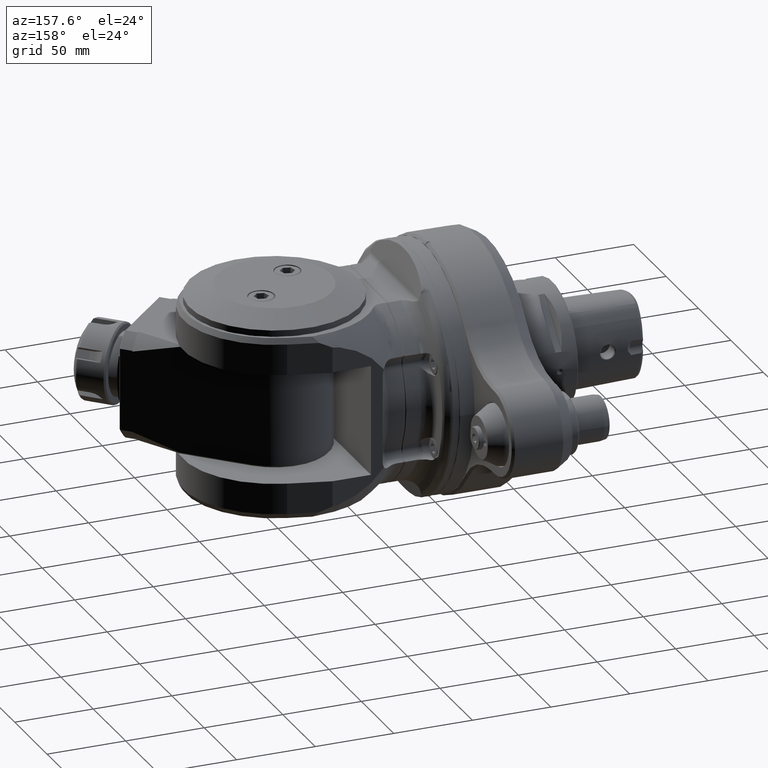
[diagram: clean part render]
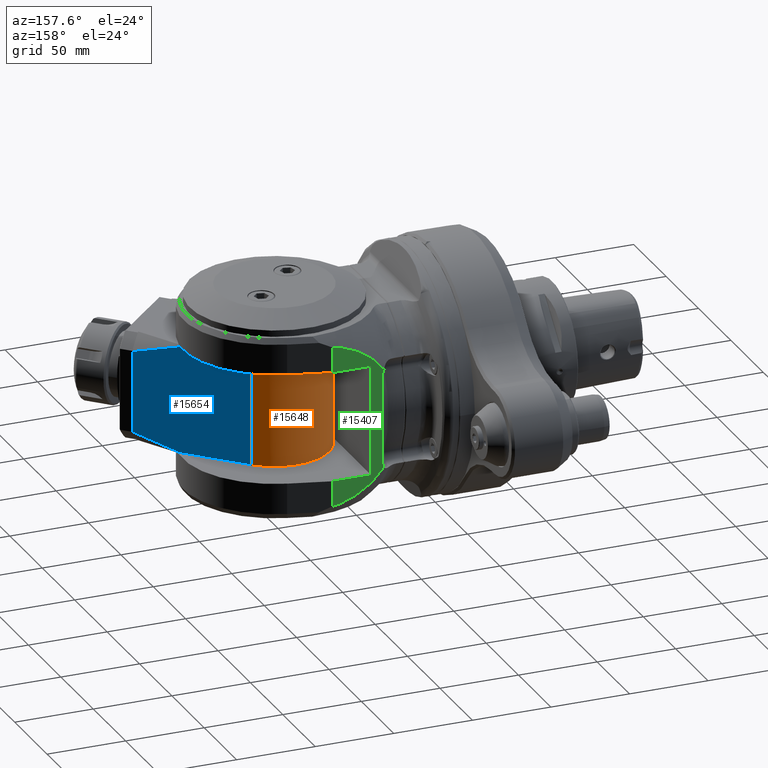
[diagram: same view with three faces highlighted in distinct colors, each labeled with its STEP entity id]
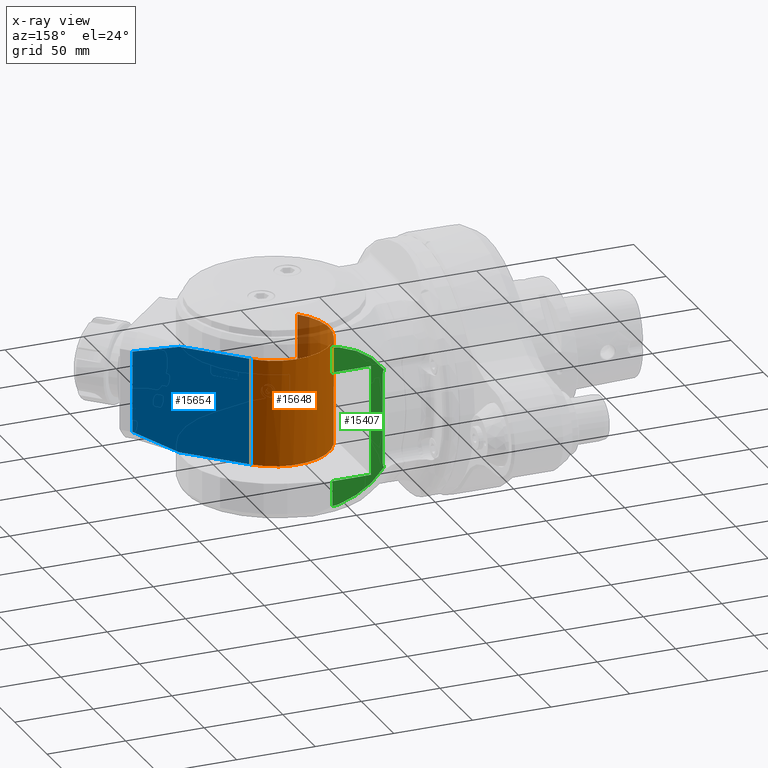
[diagram: x-ray of the same camera — body ghosted, the three highlighted faces saturated]
A machine part, auxiliary view with three faces highlighted in distinct colors.
The next image is the same camera in x-ray (body ghosted, the three faces saturated) — at least one of them is partly hidden behind the body in this view.
Their STEP definitions:

[orange] entity #15648 — the highlighted cylindrical surface (partial cylindrical patch) has radius 35 mm, axis along (-0, 0, -1).
#921=B_SPLINE_CURVE_WITH_KNOTS('',3,(#44510,#44511,#44512,#44513,#44514,
#44515,#44516,#44517,#44518,#44519,#44520,#44521,#44522,#44523,#44524,#44525,
#44526,#44527,#44528,#44529,#44530,#44531,#44532,#44533,#44534,#44535,#44536,
#44537,#44538,#44539,#44540,#44541,#44542,#44543),.UNSPECIFIED.,.F.,.F.,
(4,2,2,2,2,2,2,2,2,2,2,2,2,2,2,2,4),(5.2736137655339,5.93281548622564,6.59201720691737,
7.25121892760911,7.91042064830085,8.56962236899258,9.22882408968432,9.88802581037606,
10.5472275310678,11.2064292517595,11.8656309724513,12.524832693143,13.1840344138347,
13.8432361345265,14.5024378552182,15.16163957591,15.8208412966017),
 .UNSPECIFIED.);
#922=B_SPLINE_CURVE_WITH_KNOTS('',3,(#44545,#44546,#44547,#44548,#44549,
#44550,#44551,#44552,#44553,#44554,#44555,#44556,#44557,#44558,#44559,#44560,
#44561,#44562,#44563,#44564,#44565,#44566,#44567,#44568,#44569,#44570,#44571,
#44572,#44573,#44574,#44575,#44576,#44577,#44578),.UNSPECIFIED.,.F.,.F.,
(4,2,2,2,2,2,2,2,2,2,2,2,2,2,2,2,4),(-10.5472275316257,-9.88802581093393,
-9.22882409024218,-8.56962236955042,-7.91042064885867,-7.25121892816693,
-6.5920172074752,-5.93281548678346,-5.27361376609172,-4.61441204539998,
-3.95521032470824,-3.2960086040165,-2.63680688332476,-1.97760516263301,
-1.31840344194125,-0.659201721249496,-5.57740520434891E-10),
 .UNSPECIFIED.);
#2045=FACE_OUTER_BOUND('',#3044,.T.);
#3044=EDGE_LOOP('',(#13499,#13500,#13501,#13502));
#4096=LINE('',#44482,#5139);
#4103=LINE('',#44579,#5146);
#5139=VECTOR('',#20911,67.99999996999);
#5146=VECTOR('',#20930,67.99999996999);
#7323=VERTEX_POINT('',#44469);
#7326=VERTEX_POINT('',#44481);
#7338=VERTEX_POINT('',#44509);
#7339=VERTEX_POINT('',#44544);
#9451=EDGE_CURVE('',#7326,#7323,#4096,.T.);
#9464=EDGE_CURVE('',#7326,#7338,#921,.F.);
#9465=EDGE_CURVE('',#7339,#7323,#922,.F.);
#9466=EDGE_CURVE('',#7339,#7338,#4103,.T.);
#13499=ORIENTED_EDGE('',*,*,#9464,.F.);
#13500=ORIENTED_EDGE('',*,*,#9451,.T.);
#13501=ORIENTED_EDGE('',*,*,#9465,.F.);
#13502=ORIENTED_EDGE('',*,*,#9466,.T.);
#14941=CYLINDRICAL_SURFACE('',#17226,35.);
#15648=ADVANCED_FACE('',(#2045),#14941,.T.);
#17226=AXIS2_PLACEMENT_3D('',#44508,#20928,#20929);
#20911=DIRECTION('',(-2.65330848293835E-11,1.,2.65330848293835E-11));
#20928=DIRECTION('center_axis',(0.,-1.,0.));
#20929=DIRECTION('ref_axis',(-0.707106781186532,0.,-0.707106781186563));
#20930=DIRECTION('',(2.65330109426858E-11,-1.,-2.65330109426858E-11));
#44469=CARTESIAN_POINT('',(35.2512626594515,33.999999936594,24.7487373405568));
#44481=CARTESIAN_POINT('',(35.2512626600514,-33.9999999382294,24.748737339959));
#44482=CARTESIAN_POINT('',(35.2512626717898,-33.9999999863,24.7487373282185));
#44508=CARTESIAN_POINT('Origin',(60.0000000000042,35.,4.15667500419659E-12));
#44509=CARTESIAN_POINT('',(84.7487373405592,-33.9999999365601,-24.7487373405509));
#44510=CARTESIAN_POINT('Ctrl Pts',(84.7487373415333,-33.9999998681082,-24.748737341525));
#44511=CARTESIAN_POINT('Ctrl Pts',(83.1949839852967,-33.9999998922826,-26.3024906977616));
#44512=CARTESIAN_POINT('Ctrl Pts',(81.4394822239992,-33.9999999172827,-27.7606402174498));
#44513=CARTESIAN_POINT('Ctrl Pts',(77.61680599949,-33.9999999670142,-30.33072187885));
#44514=CARTESIAN_POINT('Ctrl Pts',(75.5497391941712,-33.999999991746,-31.4428141446412));
#44515=CARTESIAN_POINT('Ctrl Pts',(71.2381010713934,-34.0000000391812,-33.2287531311406));
#44516=CARTESIAN_POINT('Ctrl Pts',(68.9900961337408,-34.0000000619224,-33.9040221039011));
#44517=CARTESIAN_POINT('Ctrl Pts',(64.4697336821305,-34.0000001039782,-34.7897402135529));
#44518=CARTESIAN_POINT('Ctrl Pts',(62.1973390689766,-34.0000001232916,-34.9999999999958));
#44519=CARTESIAN_POINT('Ctrl Pts',(57.8026609310317,-34.0000001574793,-34.9999999999958));
#44520=CARTESIAN_POINT('Ctrl Pts',(55.5302663178778,-34.0000001735214,-34.7897402135529));
#44521=CARTESIAN_POINT('Ctrl Pts',(51.0099038662675,-34.0000002017966,-33.9040221039011));
#44522=CARTESIAN_POINT('Ctrl Pts',(48.7618989286149,-34.0000002140314,-33.2287531311406));
#44523=CARTESIAN_POINT('Ctrl Pts',(44.4502608058371,-34.0000002336798,-31.4428141446412));
#44524=CARTESIAN_POINT('Ctrl Pts',(42.3831940005183,-34.0000002411088,-30.33072187885));
#44525=CARTESIAN_POINT('Ctrl Pts',(38.5605177760091,-34.0000002508532,-27.7606402174498));
#44526=CARTESIAN_POINT('Ctrl Pts',(36.8050160147116,-34.0000002531664,-26.3024906977616));
#44527=CARTESIAN_POINT('Ctrl Pts',(33.6975093022384,-34.0000002531664,-23.1949839852884));
#44528=CARTESIAN_POINT('Ctrl Pts',(32.2393597825502,-34.0000002508532,-21.4394822239909));
#44529=CARTESIAN_POINT('Ctrl Pts',(29.6692781211501,-34.0000002411088,-17.6168059994817));
#44530=CARTESIAN_POINT('Ctrl Pts',(28.5571858553588,-34.0000002336797,-15.5497391941629));
#44531=CARTESIAN_POINT('Ctrl Pts',(26.7712468688594,-34.0000002140314,-11.2381010713851));
#44532=CARTESIAN_POINT('Ctrl Pts',(26.0959778960989,-34.0000002017966,-8.99009613373245));
#44533=CARTESIAN_POINT('Ctrl Pts',(25.2102597864471,-34.0000001735214,-4.46973368212216));
#44534=CARTESIAN_POINT('Ctrl Pts',(25.0000000000042,-34.0000001574793,-2.19733906896828));
#44535=CARTESIAN_POINT('Ctrl Pts',(25.0000000000042,-34.0000001232916,2.19733906897662));
#44536=CARTESIAN_POINT('Ctrl Pts',(25.2102597864471,-34.0000001039782,4.46973368213047));
#44537=CARTESIAN_POINT('Ctrl Pts',(26.0959778960989,-34.0000000619224,8.9900961337408));
#44538=CARTESIAN_POINT('Ctrl Pts',(26.7712468688594,-34.0000000391812,11.2381010713935));
#44539=CARTESIAN_POINT('Ctrl Pts',(28.5571858553588,-33.999999991746,15.5497391941712));
#44540=CARTESIAN_POINT('Ctrl Pts',(29.66927812115,-33.9999999670142,17.6168059994901));
#44541=CARTESIAN_POINT('Ctrl Pts',(32.2393597825502,-33.9999999172827,21.4394822239992));
#44542=CARTESIAN_POINT('Ctrl Pts',(33.6975093022384,-33.9999998922826,23.1949839852967));
#44543=CARTESIAN_POINT('Ctrl Pts',(35.251262658475,-33.9999998681082,24.7487373415333));
#44544=CARTESIAN_POINT('',(84.7487373399572,33.9999999382593,-24.7487373399468));
#44545=CARTESIAN_POINT('Ctrl Pts',(35.2512626545279,33.9999998681382,24.7487373375862));
#44546=CARTESIAN_POINT('Ctrl Pts',(33.6975092982914,33.9999998923126,23.1949839813497));
#44547=CARTESIAN_POINT('Ctrl Pts',(32.2393597791309,33.9999999173127,21.4394822195718));
#44548=CARTESIAN_POINT('Ctrl Pts',(29.6692781183404,33.9999999670442,17.6168059946528));
#44549=CARTESIAN_POINT('Ctrl Pts',(28.5571858528789,33.999999991776,15.5497391891566));
#44550=CARTESIAN_POINT('Ctrl Pts',(26.7712468670671,34.0000000392112,11.2381010660941));
#44551=CARTESIAN_POINT('Ctrl Pts',(26.0959778946652,34.0000000619524,8.99009612833378));
#44552=CARTESIAN_POINT('Ctrl Pts',(25.2102597857343,34.0000001040082,4.46973367658234));
#44553=CARTESIAN_POINT('Ctrl Pts',(24.9999999996537,34.0000001233216,2.19733906339503));
#44554=CARTESIAN_POINT('Ctrl Pts',(25.0000000003545,34.0000001575093,-2.19733907454977));
#44555=CARTESIAN_POINT('Ctrl Pts',(25.2102597871599,34.0000001735514,-4.46973368766997));
#44556=CARTESIAN_POINT('Ctrl Pts',(26.0959778975325,34.0000002018266,-8.99009613913886));
#44557=CARTESIAN_POINT('Ctrl Pts',(26.7712468706514,34.0000002140614,-11.2381010766838));
#44558=CARTESIAN_POINT('Ctrl Pts',(28.5571858578383,34.0000002337097,-15.5497391991766));
#44559=CARTESIAN_POINT('Ctrl Pts',(29.6692781239591,34.0000002411388,-17.616806004318));
#44560=CARTESIAN_POINT('Ctrl Pts',(32.2393597859686,34.0000002508832,-21.4394822284173));
#44561=CARTESIAN_POINT('Ctrl Pts',(33.6975093059367,34.0000002531964,-23.1949839894822));
#44562=CARTESIAN_POINT('Ctrl Pts',(36.8050160189052,34.0000002531964,-26.3024907014597));
#44563=CARTESIAN_POINT('Ctrl Pts',(38.5605177804351,34.0000002508832,-27.7606402208681));
#44564=CARTESIAN_POINT('Ctrl Pts',(42.3831940053539,34.0000002411388,-30.3307218816587));
#44565=CARTESIAN_POINT('Ctrl Pts',(44.45026081085,34.0000002337098,-31.4428141471202));
#44566=CARTESIAN_POINT('Ctrl Pts',(48.7618989339123,34.0000002140615,-33.2287531329322));
#44567=CARTESIAN_POINT('Ctrl Pts',(51.0099038716725,34.0000002018266,-33.9040221053343));
#44568=CARTESIAN_POINT('Ctrl Pts',(55.5302663234238,34.0000001735514,-34.7897402142654));
#44569=CARTESIAN_POINT('Ctrl Pts',(57.8026609366111,34.0000001575093,-35.0000000003461));
#44570=CARTESIAN_POINT('Ctrl Pts',(62.1973390745559,34.0000001233216,-34.9999999996456));
#44571=CARTESIAN_POINT('Ctrl Pts',(64.4697336876762,34.0000001040081,-34.7897402128404));
#44572=CARTESIAN_POINT('Ctrl Pts',(68.9900961391452,34.0000000619523,-33.904022102468));
#44573=CARTESIAN_POINT('Ctrl Pts',(71.2381010766902,34.0000000392112,-33.2287531293492));
#44574=CARTESIAN_POINT('Ctrl Pts',(75.5497391991832,33.999999991776,-31.4428141421625));
#44575=CARTESIAN_POINT('Ctrl Pts',(77.6168060043248,33.9999999670442,-30.3307218760418));
#44576=CARTESIAN_POINT('Ctrl Pts',(81.4394822284243,33.9999999173127,-27.7606402140324));
#44577=CARTESIAN_POINT('Ctrl Pts',(83.1949839894893,33.9999998923126,-26.3024906940643));
#44578=CARTESIAN_POINT('Ctrl Pts',(84.7487373454782,33.9999998681382,-24.7487373375801));
#44579=CARTESIAN_POINT('',(84.7487373282185,33.99999998627,-24.7487373282102));

[blue] entity #15654 — the highlighted planar face has unit normal (0.7071, 0.7071, 0).
#232=(
BOUNDED_CURVE()
B_SPLINE_CURVE(2,(#44610,#44611,#44612),.UNSPECIFIED.,.F.,.F.)
B_SPLINE_CURVE_WITH_KNOTS((3,3),(4.28565426220378,7.90339694760493),
 .UNSPECIFIED.)
CURVE()
GEOMETRIC_REPRESENTATION_ITEM()
RATIONAL_B_SPLINE_CURVE((1.00971867454626,1.00914126972932,1.00066357831228))
REPRESENTATION_ITEM('')
);
#233=(
BOUNDED_CURVE()
B_SPLINE_CURVE(2,(#44618,#44619,#44620),.UNSPECIFIED.,.F.,.F.)
B_SPLINE_CURVE_WITH_KNOTS((3,3),(-7.90339694762154,-4.28565426220265),
 .UNSPECIFIED.)
CURVE()
GEOMETRIC_REPRESENTATION_ITEM()
RATIONAL_B_SPLINE_CURVE((1.0006635783122,1.00914126972933,1.00971867454627))
REPRESENTATION_ITEM('')
);
#1239=PLANE('',#17237);
#2051=FACE_OUTER_BOUND('',#3051,.T.);
#3051=EDGE_LOOP('',(#13526,#13527,#13528,#13529,#13530,#13531));
#4103=LINE('',#44579,#5146);
#4109=LINE('',#44606,#5152);
#4110=LINE('',#44616,#5153);
#4111=LINE('',#44621,#5154);
#5146=VECTOR('',#20930,67.99999996999);
#5152=VECTOR('',#20950,45.9677723117);
#5153=VECTOR('',#20959,45.9677723117);
#5154=VECTOR('',#20960,51.6623654128);
#7338=VERTEX_POINT('',#44509);
#7339=VERTEX_POINT('',#44544);
#7347=VERTEX_POINT('',#44605);
#7348=VERTEX_POINT('',#44609);
#7349=VERTEX_POINT('',#44615);
#7350=VERTEX_POINT('',#44617);
#9466=EDGE_CURVE('',#7339,#7338,#4103,.T.);
#9477=EDGE_CURVE('',#7347,#7338,#4109,.T.);
#9479=EDGE_CURVE('',#7347,#7348,#232,.T.);
#9481=EDGE_CURVE('',#7349,#7339,#4110,.T.);
#9482=EDGE_CURVE('',#7350,#7349,#233,.T.);
#9483=EDGE_CURVE('',#7348,#7350,#4111,.T.);
#13526=ORIENTED_EDGE('',*,*,#9479,.F.);
#13527=ORIENTED_EDGE('',*,*,#9477,.T.);
#13528=ORIENTED_EDGE('',*,*,#9466,.F.);
#13529=ORIENTED_EDGE('',*,*,#9481,.F.);
#13530=ORIENTED_EDGE('',*,*,#9482,.F.);
#13531=ORIENTED_EDGE('',*,*,#9483,.F.);
#15654=ADVANCED_FACE('',(#2051),#1239,.T.);
#17237=AXIS2_PLACEMENT_3D('',#44614,#20957,#20958);
#20930=DIRECTION('',(2.65330109426858E-11,-1.,-2.65330109426858E-11));
#20950=DIRECTION('',(-0.707106781284089,7.249213689528E-9,-0.707106781089006));
#20957=DIRECTION('center_axis',(0.707106781186548,0.,-0.707106781186548));
#20958=DIRECTION('ref_axis',(-0.707106781186548,0.,-0.707106781186548));
#20959=DIRECTION('',(-0.707106781323339,-7.193703963653E-9,-0.707106781049756));
#20960=DIRECTION('',(2.52311970139884E-12,1.,-2.52311970139884E-12));
#44509=CARTESIAN_POINT('',(84.7487373405592,-33.9999999365601,-24.7487373405509));
#44544=CARTESIAN_POINT('',(84.7487373399572,33.9999999382593,-24.7487373399468));
#44579=CARTESIAN_POINT('',(84.7487373282185,33.99999998627,-24.7487373282102));
#44605=CARTESIAN_POINT('',(117.252860870718,-34.0000004371772,7.7553862309982));
#44606=CARTESIAN_POINT('',(117.252860852147,-34.0000003169,7.75538618314592));
#44609=CARTESIAN_POINT('',(138.488852711577,-25.83118270662,28.9913780287869));
#44610=CARTESIAN_POINT('Ctrl Pts',(117.252860920053,-34.0000006056764,7.7553862369942));
#44611=CARTESIAN_POINT('Ctrl Pts',(129.320543586661,-29.6812470036271,19.823068903603));
#44612=CARTESIAN_POINT('Ctrl Pts',(138.488852711627,-25.8311827062201,28.9913780285687));
#44614=CARTESIAN_POINT('Origin',(138.488852711711,35.,28.9913780286526));
#44615=CARTESIAN_POINT('',(117.252860870716,34.0000004372074,7.75538623099116));
#44616=CARTESIAN_POINT('',(117.252860852147,34.00000031695,7.75538618314592));
#44617=CARTESIAN_POINT('',(138.488852711711,25.83118270618,28.9913780286526));
#44618=CARTESIAN_POINT('Ctrl Pts',(138.488852711712,25.8311827061845,28.9913780286536));
#44619=CARTESIAN_POINT('Ctrl Pts',(129.320543586714,29.6812470036085,19.8230689036556));
#44620=CARTESIAN_POINT('Ctrl Pts',(117.252860920045,34.0000006056791,7.75538623698668));
#44621=CARTESIAN_POINT('',(138.488852711577,-25.83118270662,28.9913780287869));

[green] entity #15407 — the highlighted planar face has unit normal (-0, 1, 0).
#173=(
BOUNDED_CURVE()
B_SPLINE_CURVE(2,(#41887,#41888,#41889),.UNSPECIFIED.,.F.,.F.)
B_SPLINE_CURVE_WITH_KNOTS((3,3),(-1.54314818098442,-1.13165917102346),
 .UNSPECIFIED.)
CURVE()
GEOMETRIC_REPRESENTATION_ITEM()
RATIONAL_B_SPLINE_CURVE((1.00036148763528,1.00033763889341,1.00030080530768))
REPRESENTATION_ITEM('')
);
#174=(
BOUNDED_CURVE()
B_SPLINE_CURVE(2,(#41891,#41892,#41893),.UNSPECIFIED.,.F.,.F.)
B_SPLINE_CURVE_WITH_KNOTS((3,3),(-1.58354368235024,-0.491702739333362),
 .UNSPECIFIED.)
CURVE()
GEOMETRIC_REPRESENTATION_ITEM()
RATIONAL_B_SPLINE_CURVE((1.00190730205239,1.00173294474192,1.00089229311935))
REPRESENTATION_ITEM('')
);
#175=(
BOUNDED_CURVE()
B_SPLINE_CURVE(2,(#41895,#41896,#41897),.UNSPECIFIED.,.F.,.F.)
B_SPLINE_CURVE_WITH_KNOTS((3,3),(-2.81895816819113,-1.64990287314086),
 .UNSPECIFIED.)
CURVE()
GEOMETRIC_REPRESENTATION_ITEM()
RATIONAL_B_SPLINE_CURVE((1.00439914148704,1.00546583131453,1.00489119305624))
REPRESENTATION_ITEM('')
);
#176=(
BOUNDED_CURVE()
B_SPLINE_CURVE(2,(#41899,#41900,#41901),.UNSPECIFIED.,.F.,.F.)
B_SPLINE_CURVE_WITH_KNOTS((3,3),(-4.48026411643119,-3.09000588912606),
 .UNSPECIFIED.)
CURVE()
GEOMETRIC_REPRESENTATION_ITEM()
RATIONAL_B_SPLINE_CURVE((1.00305713876156,1.00848071051755,1.01024396190394))
REPRESENTATION_ITEM('')
);
#177=(
BOUNDED_CURVE()
B_SPLINE_CURVE(2,(#41911,#41912,#41913),.UNSPECIFIED.,.F.,.F.)
B_SPLINE_CURVE_WITH_KNOTS((3,3),(-1.75057410217128,-0.360315875594101),
 .UNSPECIFIED.)
CURVE()
GEOMETRIC_REPRESENTATION_ITEM()
RATIONAL_B_SPLINE_CURVE((1.01024396197385,1.00848071060304,1.0030571388622))
REPRESENTATION_ITEM('')
);
#178=(
BOUNDED_CURVE()
B_SPLINE_CURVE(2,(#41915,#41916,#41917),.UNSPECIFIED.,.F.,.F.)
B_SPLINE_CURVE_WITH_KNOTS((3,3),(-2.46848863234185,-1.29943333729275),
 .UNSPECIFIED.)
CURVE()
GEOMETRIC_REPRESENTATION_ITEM()
RATIONAL_B_SPLINE_CURVE((1.00489119305624,1.00546583131453,1.00439914148704))
REPRESENTATION_ITEM('')
);
#179=(
BOUNDED_CURVE()
B_SPLINE_CURVE(2,(#41919,#41920,#41921),.UNSPECIFIED.,.F.,.F.)
B_SPLINE_CURVE_WITH_KNOTS((3,3),(-3.24681513833183,-2.15497419531336),
 .UNSPECIFIED.)
CURVE()
GEOMETRIC_REPRESENTATION_ITEM()
RATIONAL_B_SPLINE_CURVE((1.00089229311935,1.00173294474192,1.00190730205239))
REPRESENTATION_ITEM('')
);
#180=(
BOUNDED_CURVE()
B_SPLINE_CURVE(2,(#41923,#41924,#41925),.UNSPECIFIED.,.F.,.F.)
B_SPLINE_CURVE_WITH_KNOTS((3,3),(-3.46616774045041,-3.05467875052099),
 .UNSPECIFIED.)
CURVE()
GEOMETRIC_REPRESENTATION_ITEM()
RATIONAL_B_SPLINE_CURVE((1.00030080440078,1.00033763804038,1.00036148683611))
REPRESENTATION_ITEM('')
);
#1139=PLANE('',#16786);
#1804=FACE_OUTER_BOUND('',#2776,.T.);
#2776=EDGE_LOOP('',(#12340,#12341,#12342,#12343,#12344,#12345,#12346,#12347,
#12348,#12349,#12350,#12351,#12352,#12353,#12354,#12355,#12356));
#3910=LINE('',#41869,#4953);
#3914=LINE('',#41882,#4957);
#3915=LINE('',#41885,#4958);
#3916=LINE('',#41905,#4959);
#3917=LINE('',#41907,#4960);
#3918=LINE('',#41927,#4961);
#3919=LINE('',#41928,#4962);
#4953=VECTOR('',#19847,70.);
#4957=VECTOR('',#19859,24.47559082222);
#4958=VECTOR('',#19862,16.09619086282);
#4959=VECTOR('',#19865,28.5);
#4960=VECTOR('',#19866,28.5);
#4961=VECTOR('',#19869,16.0961908628);
#4962=VECTOR('',#19870,24.47559082222);
#5861=CIRCLE('',#16787,6.);
#5862=CIRCLE('',#16788,6.);
#7003=VERTEX_POINT('',#41866);
#7004=VERTEX_POINT('',#41868);
#7009=VERTEX_POINT('',#41880);
#7010=VERTEX_POINT('',#41884);
#7011=VERTEX_POINT('',#41886);
#7012=VERTEX_POINT('',#41890);
#7013=VERTEX_POINT('',#41894);
#7014=VERTEX_POINT('',#41898);
#7015=VERTEX_POINT('',#41902);
#7016=VERTEX_POINT('',#41904);
#7017=VERTEX_POINT('',#41906);
#7018=VERTEX_POINT('',#41908);
#7019=VERTEX_POINT('',#41910);
#7020=VERTEX_POINT('',#41914);
#7021=VERTEX_POINT('',#41918);
#7022=VERTEX_POINT('',#41922);
#7023=VERTEX_POINT('',#41926);
#8917=EDGE_CURVE('',#7003,#7004,#3910,.T.);
#8924=EDGE_CURVE('',#7003,#7009,#3914,.T.);
#8925=EDGE_CURVE('',#7009,#7010,#3915,.T.);
#8926=EDGE_CURVE('',#7011,#7010,#173,.T.);
#8927=EDGE_CURVE('',#7012,#7011,#174,.T.);
#8928=EDGE_CURVE('',#7013,#7012,#175,.T.);
#8929=EDGE_CURVE('',#7014,#7013,#176,.T.);
#8930=EDGE_CURVE('',#7014,#7015,#5861,.T.);
#8931=EDGE_CURVE('',#7015,#7016,#3916,.T.);
#8932=EDGE_CURVE('',#7016,#7017,#3917,.T.);
#8933=EDGE_CURVE('',#7017,#7018,#5862,.T.);
#8934=EDGE_CURVE('',#7019,#7018,#177,.T.);
#8935=EDGE_CURVE('',#7020,#7019,#178,.T.);
#8936=EDGE_CURVE('',#7021,#7020,#179,.T.);
#8937=EDGE_CURVE('',#7022,#7021,#180,.T.);
#8938=EDGE_CURVE('',#7022,#7023,#3918,.T.);
#8939=EDGE_CURVE('',#7023,#7004,#3919,.T.);
#12340=ORIENTED_EDGE('',*,*,#8917,.F.);
#12341=ORIENTED_EDGE('',*,*,#8924,.T.);
#12342=ORIENTED_EDGE('',*,*,#8925,.T.);
#12343=ORIENTED_EDGE('',*,*,#8926,.F.);
#12344=ORIENTED_EDGE('',*,*,#8927,.F.);
#12345=ORIENTED_EDGE('',*,*,#8928,.F.);
#12346=ORIENTED_EDGE('',*,*,#8929,.F.);
#12347=ORIENTED_EDGE('',*,*,#8930,.T.);
#12348=ORIENTED_EDGE('',*,*,#8931,.T.);
#12349=ORIENTED_EDGE('',*,*,#8932,.T.);
#12350=ORIENTED_EDGE('',*,*,#8933,.T.);
#12351=ORIENTED_EDGE('',*,*,#8934,.F.);
#12352=ORIENTED_EDGE('',*,*,#8935,.F.);
#12353=ORIENTED_EDGE('',*,*,#8936,.F.);
#12354=ORIENTED_EDGE('',*,*,#8937,.F.);
#12355=ORIENTED_EDGE('',*,*,#8938,.T.);
#12356=ORIENTED_EDGE('',*,*,#8939,.T.);
#15407=ADVANCED_FACE('',(#1804),#1139,.T.);
#16786=AXIS2_PLACEMENT_3D('',#41883,#19860,#19861);
#16787=AXIS2_PLACEMENT_3D('',#41903,#19863,#19864);
#16788=AXIS2_PLACEMENT_3D('',#41909,#19867,#19868);
#19847=DIRECTION('',(0.,1.,0.));
#19859=DIRECTION('',(1.,0.,0.));
#19860=DIRECTION('center_axis',(0.,0.,-1.));
#19861=DIRECTION('ref_axis',(0.,-1.,0.));
#19862=DIRECTION('',(1.571951217282E-12,-1.,4.118591647638E-13));
#19863=DIRECTION('center_axis',(0.,0.,1.));
#19864=DIRECTION('ref_axis',(0.868521551862402,-0.495651403660401,0.));
#19865=DIRECTION('',(0.,1.,0.));
#19866=DIRECTION('',(0.,1.,0.));
#19867=DIRECTION('center_axis',(0.,0.,1.));
#19868=DIRECTION('ref_axis',(1.,0.,0.));
#19869=DIRECTION('',(-1.854028394437E-13,-1.,-4.45849685329E-14));
#19870=DIRECTION('',(-1.,0.,0.));
#41866=CARTESIAN_POINT('',(24.5,-35.,-63.));
#41868=CARTESIAN_POINT('',(24.5,35.,-63.));
#41869=CARTESIAN_POINT('',(24.5,-35.,-63.));
#41880=CARTESIAN_POINT('',(48.97559082222,-35.,-63.));
#41882=CARTESIAN_POINT('',(24.5,-35.,-63.));
#41883=CARTESIAN_POINT('Origin',(0.,58.,-63.));
#41884=CARTESIAN_POINT('',(48.97559082225,-51.09619086282,-62.99999999999));
#41885=CARTESIAN_POINT('',(48.97559082222,-35.,-63.));
#41886=CARTESIAN_POINT('',(44.7911162938219,-50.5129934127795,-62.9999999897305));
#41887=CARTESIAN_POINT('Ctrl Pts',(44.7911162969863,-50.5129933905557,-63.));
#41888=CARTESIAN_POINT('Ctrl Pts',(46.8713449258344,-50.8039326150446,-63.));
#41889=CARTESIAN_POINT('Ctrl Pts',(48.9755908222527,-51.0961908628006,-63.));
#41890=CARTESIAN_POINT('',(33.9624269323703,-46.4118791833364,-62.9999999182663));
#41891=CARTESIAN_POINT('Ctrl Pts',(33.9624269852984,-46.4118790480791,-63.));
#41892=CARTESIAN_POINT('Ctrl Pts',(39.1476782601765,-48.4301947652933,-63.));
#41893=CARTESIAN_POINT('Ctrl Pts',(44.7911162948247,-50.5129934104416,-63.));
#41894=CARTESIAN_POINT('',(24.34625555296,-40.23136214448,-63.));
#41895=CARTESIAN_POINT('Ctrl Pts',(24.3462555529599,-40.23136214448,-63.));
#41896=CARTESIAN_POINT('Ctrl Pts',(28.811366375645,-43.2509284499282,-63.));
#41897=CARTESIAN_POINT('Ctrl Pts',(33.962426960994,-46.4118791373507,-63.));
#41898=CARTESIAN_POINT('',(16.21112931117,-31.47390842196,-63.));
#41899=CARTESIAN_POINT('Ctrl Pts',(16.2111293111709,-31.4739084219595,-63.));
#41900=CARTESIAN_POINT('Ctrl Pts',(19.7819158978709,-35.7221696137501,-63.));
#41901=CARTESIAN_POINT('Ctrl Pts',(24.3462555529307,-40.2313621444497,-63.));
#41902=CARTESIAN_POINT('',(17.,-28.5,-63.));
#41903=CARTESIAN_POINT('Origin',(11.,-28.5,-63.));
#41904=CARTESIAN_POINT('',(17.,-9.237055564881E-14,-63.));
#41905=CARTESIAN_POINT('',(17.,-28.5,-63.));
#41906=CARTESIAN_POINT('',(17.,28.5,-63.));
#41907=CARTESIAN_POINT('',(17.,-1.938746336415E-14,-63.));
#41908=CARTESIAN_POINT('',(16.21112931117,31.47390842196,-63.));
#41909=CARTESIAN_POINT('Origin',(11.,28.5,-63.));
#41910=CARTESIAN_POINT('',(24.34625555296,40.23136214448,-63.));
#41911=CARTESIAN_POINT('Ctrl Pts',(24.3462555529307,40.2313621444497,-63.));
#41912=CARTESIAN_POINT('Ctrl Pts',(19.7819158978709,35.7221696137501,-63.));
#41913=CARTESIAN_POINT('Ctrl Pts',(16.2111293111709,31.4739084219595,-63.));
#41914=CARTESIAN_POINT('',(33.9624269323606,46.411879183329,-62.9999999182682));
#41915=CARTESIAN_POINT('Ctrl Pts',(33.9624269609836,46.4118791373444,-63.));
#41916=CARTESIAN_POINT('Ctrl Pts',(28.8113663756405,43.2509284499252,-63.));
#41917=CARTESIAN_POINT('Ctrl Pts',(24.3462555529599,40.23136214448,-63.));
#41918=CARTESIAN_POINT('',(44.7911162938264,50.5129934127812,-62.99999998973));
#41919=CARTESIAN_POINT('Ctrl Pts',(44.7911162948292,50.5129934104433,-63.));
#41920=CARTESIAN_POINT('Ctrl Pts',(39.1476782601726,48.4301947652919,-63.));
#41921=CARTESIAN_POINT('Ctrl Pts',(33.9624269852875,46.4118790480749,-63.));
#41922=CARTESIAN_POINT('',(48.97559082223,51.0961908628,-63.));
#41923=CARTESIAN_POINT('Ctrl Pts',(48.9755908222304,51.0961908627975,-63.));
#41924=CARTESIAN_POINT('Ctrl Pts',(46.8713449258254,50.8039326150433,-63.));
#41925=CARTESIAN_POINT('Ctrl Pts',(44.7911162969909,50.5129933905563,-63.));
#41926=CARTESIAN_POINT('',(48.97559082222,35.,-63.));
#41927=CARTESIAN_POINT('',(48.97559082223,51.0961908628,-63.));
#41928=CARTESIAN_POINT('',(48.97559082222,35.,-63.));